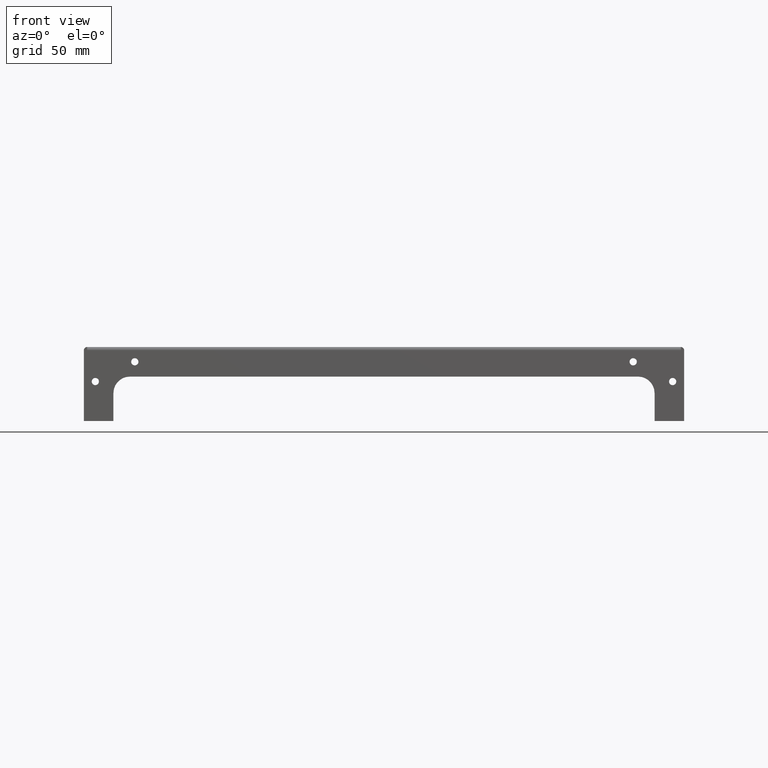
[diagram: clean part render]
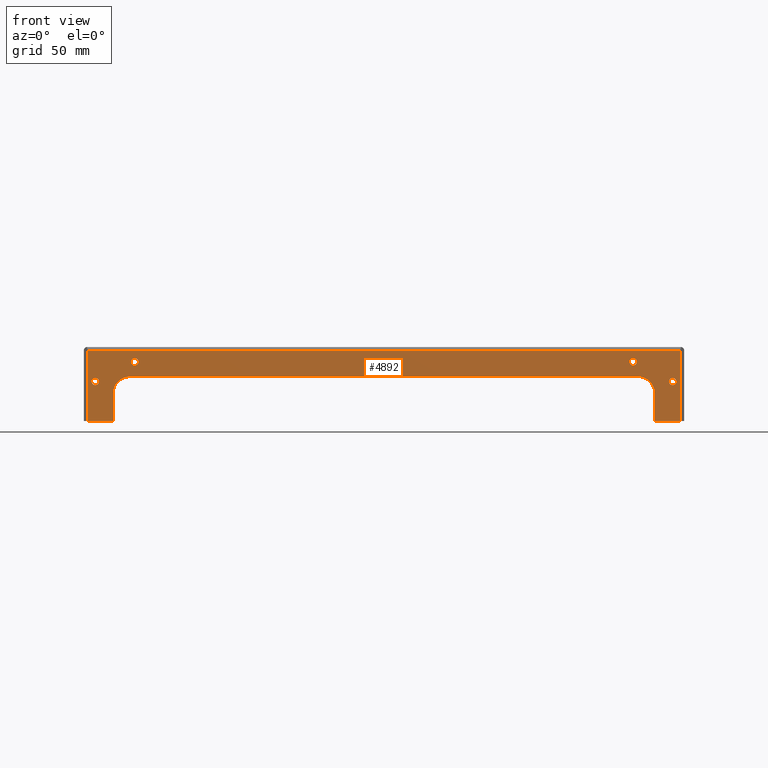
[diagram: same view with one face highlighted and labeled with its STEP entity id]
A machine part, front view. The second image highlights one B-rep face of the part: STEP entity #4892.
In plain terms, the highlighted planar face has unit normal (0, -1, 0).
Its self-contained STEP definition (entity closure, byte-faithful):
#1242 = VERTEX_POINT('',#1243);
#1243 = CARTESIAN_POINT('',(362.968,0.,0.));
#1259 = PLANE('',#1260);
#1260 = AXIS2_PLACEMENT_3D('',#1261,#1262,#1263);
#1261 = CARTESIAN_POINT('',(0.,0.,0.));
#1262 = DIRECTION('',(0.,1.,0.));
#1263 = DIRECTION('',(1.,0.,0.));
#1335 = PLANE('',#1336);
#1336 = AXIS2_PLACEMENT_3D('',#1337,#1338,#1339);
#1337 = CARTESIAN_POINT('',(362.968,0.,0.));
#1338 = DIRECTION('',(1.,0.,0.));
#1339 = DIRECTION('',(0.,1.,0.));
#1488 = VERTEX_POINT('',#1489);
#1489 = CARTESIAN_POINT('',(2.032,0.,0.));
#1549 = PLANE('',#1550);
#1550 = AXIS2_PLACEMENT_3D('',#1551,#1552,#1553);
#1551 = CARTESIAN_POINT('',(2.032,2.032,0.));
#1552 = DIRECTION('',(-1.,-0.,-0.));
#1553 = DIRECTION('',(0.,-1.,0.));
#2798 = EDGE_CURVE('',#1488,#1242,#2799,.T.);
#2799 = SURFACE_CURVE('',#2800,(#2804,#2811),.PCURVE_S1.);
#2800 = LINE('',#2801,#2802);
#2801 = CARTESIAN_POINT('',(2.032,0.,0.));
#2802 = VECTOR('',#2803,1.);
#2803 = DIRECTION('',(1.,0.,0.));
#2804 = PCURVE('',#1259,#2805);
#2805 = DEFINITIONAL_REPRESENTATION('',(#2806),#2810);
#2806 = LINE('',#2807,#2808);
#2807 = CARTESIAN_POINT('',(2.032,0.));
#2808 = VECTOR('',#2809,1.);
#2809 = DIRECTION('',(1.,0.));
#2810 = ( GEOMETRIC_REPRESENTATION_CONTEXT(2) 
PARAMETRIC_REPRESENTATION_CONTEXT() REPRESENTATION_CONTEXT('2D SPACE',''
  ) );
#2811 = PCURVE('',#2812,#2817);
#2812 = PLANE('',#2813);
#2813 = AXIS2_PLACEMENT_3D('',#2814,#2815,#2816);
#2814 = CARTESIAN_POINT('',(2.032,0.,0.));
#2815 = DIRECTION('',(0.,-1.,0.));
#2816 = DIRECTION('',(1.,0.,0.));
#2817 = DEFINITIONAL_REPRESENTATION('',(#2818),#2822);
#2818 = LINE('',#2819,#2820);
#2819 = CARTESIAN_POINT('',(0.,0.));
#2820 = VECTOR('',#2821,1.);
#2821 = DIRECTION('',(1.,0.));
#2822 = ( GEOMETRIC_REPRESENTATION_CONTEXT(2) 
PARAMETRIC_REPRESENTATION_CONTEXT() REPRESENTATION_CONTEXT('2D SPACE',''
  ) );
#2827 = EDGE_CURVE('',#1242,#2828,#2830,.T.);
#2828 = VERTEX_POINT('',#2829);
#2829 = CARTESIAN_POINT('',(362.968,0.,-42.968));
#2830 = SURFACE_CURVE('',#2831,(#2835,#2842),.PCURVE_S1.);
#2831 = LINE('',#2832,#2833);
#2832 = CARTESIAN_POINT('',(362.968,0.,0.));
#2833 = VECTOR('',#2834,1.);
#2834 = DIRECTION('',(0.,0.,-1.));
#2835 = PCURVE('',#1335,#2836);
#2836 = DEFINITIONAL_REPRESENTATION('',(#2837),#2841);
#2837 = LINE('',#2838,#2839);
#2838 = CARTESIAN_POINT('',(0.,0.));
#2839 = VECTOR('',#2840,1.);
#2840 = DIRECTION('',(0.,-1.));
#2841 = ( GEOMETRIC_REPRESENTATION_CONTEXT(2) 
PARAMETRIC_REPRESENTATION_CONTEXT() REPRESENTATION_CONTEXT('2D SPACE',''
  ) );
#2842 = PCURVE('',#2812,#2843);
#2843 = DEFINITIONAL_REPRESENTATION('',(#2844),#2848);
#2844 = LINE('',#2845,#2846);
#2845 = CARTESIAN_POINT('',(360.936,0.));
#2846 = VECTOR('',#2847,1.);
#2847 = DIRECTION('',(0.,-1.));
#2848 = ( GEOMETRIC_REPRESENTATION_CONTEXT(2) 
PARAMETRIC_REPRESENTATION_CONTEXT() REPRESENTATION_CONTEXT('2D SPACE',''
  ) );
#2866 = PLANE('',#2867);
#2867 = AXIS2_PLACEMENT_3D('',#2868,#2869,#2870);
#2868 = CARTESIAN_POINT('',(2.032,0.,-42.968));
#2869 = DIRECTION('',(0.,0.,-1.));
#2870 = DIRECTION('',(-1.,0.,0.));
#3013 = VERTEX_POINT('',#3014);
#3014 = CARTESIAN_POINT('',(2.032,0.,-42.968));
#3028 = PLANE('',#3029);
#3029 = AXIS2_PLACEMENT_3D('',#3030,#3031,#3032);
#3030 = CARTESIAN_POINT('',(2.032,0.,-42.968));
#3031 = DIRECTION('',(0.,0.,-1.));
#3032 = DIRECTION('',(-1.,0.,0.));
#3040 = EDGE_CURVE('',#1488,#3013,#3041,.T.);
#3041 = SURFACE_CURVE('',#3042,(#3046,#3053),.PCURVE_S1.);
#3042 = LINE('',#3043,#3044);
#3043 = CARTESIAN_POINT('',(2.032,0.,0.));
#3044 = VECTOR('',#3045,1.);
#3045 = DIRECTION('',(0.,0.,-1.));
#3046 = PCURVE('',#1549,#3047);
#3047 = DEFINITIONAL_REPRESENTATION('',(#3048),#3052);
#3048 = LINE('',#3049,#3050);
#3049 = CARTESIAN_POINT('',(2.032,0.));
#3050 = VECTOR('',#3051,1.);
#3051 = DIRECTION('',(0.,-1.));
#3052 = ( GEOMETRIC_REPRESENTATION_CONTEXT(2) 
PARAMETRIC_REPRESENTATION_CONTEXT() REPRESENTATION_CONTEXT('2D SPACE',''
  ) );
#3053 = PCURVE('',#2812,#3054);
#3054 = DEFINITIONAL_REPRESENTATION('',(#3055),#3059);
#3055 = LINE('',#3056,#3057);
#3056 = CARTESIAN_POINT('',(0.,0.));
#3057 = VECTOR('',#3058,1.);
#3058 = DIRECTION('',(0.,-1.));
#3059 = ( GEOMETRIC_REPRESENTATION_CONTEXT(2) 
PARAMETRIC_REPRESENTATION_CONTEXT() REPRESENTATION_CONTEXT('2D SPACE',''
  ) );
#3672 = PLANE('',#3673);
#3673 = AXIS2_PLACEMENT_3D('',#3674,#3675,#3676);
#3674 = CARTESIAN_POINT('',(347.,250.,-25.968));
#3675 = DIRECTION('',(1.,0.,0.));
#3676 = DIRECTION('',(0.,-2.2E-16,-1.));
#3700 = CYLINDRICAL_SURFACE('',#3701,10.);
#3701 = AXIS2_PLACEMENT_3D('',#3702,#3703,#3704);
#3702 = CARTESIAN_POINT('',(337.,250.,-25.968));
#3703 = DIRECTION('',(0.,1.,-2.2E-16));
#3704 = DIRECTION('',(-1.,0.,0.));
#3727 = PLANE('',#3728);
#3728 = AXIS2_PLACEMENT_3D('',#3729,#3730,#3731);
#3729 = CARTESIAN_POINT('',(28.,250.,-15.968));
#3730 = DIRECTION('',(0.,2.2E-16,1.));
#3731 = DIRECTION('',(1.,0.,0.));
#3755 = CYLINDRICAL_SURFACE('',#3756,10.);
#3756 = AXIS2_PLACEMENT_3D('',#3757,#3758,#3759);
#3757 = CARTESIAN_POINT('',(28.,250.,-25.968));
#3758 = DIRECTION('',(0.,1.,-2.2E-16));
#3759 = DIRECTION('',(-1.,0.,0.));
#3782 = PLANE('',#3783);
#3783 = AXIS2_PLACEMENT_3D('',#3784,#3785,#3786);
#3784 = CARTESIAN_POINT('',(18.,250.,-50.));
#3785 = DIRECTION('',(-1.,0.,0.));
#3786 = DIRECTION('',(0.,2.2E-16,1.));
#3834 = CYLINDRICAL_SURFACE('',#3835,2.195);
#3835 = AXIS2_PLACEMENT_3D('',#3836,#3837,#3838);
#3836 = CARTESIAN_POINT('',(334.,250.,-6.968));
#3837 = DIRECTION('',(0.,1.,-2.2E-16));
#3838 = DIRECTION('',(-1.,0.,0.));
#3865 = CYLINDRICAL_SURFACE('',#3866,2.195);
#3866 = AXIS2_PLACEMENT_3D('',#3867,#3868,#3869);
#3867 = CARTESIAN_POINT('',(358.,250.,-18.968));
#3868 = DIRECTION('',(0.,1.,-2.2E-16));
#3869 = DIRECTION('',(-1.,0.,0.));
#3896 = CYLINDRICAL_SURFACE('',#3897,2.195);
#3897 = AXIS2_PLACEMENT_3D('',#3898,#3899,#3900);
#3898 = CARTESIAN_POINT('',(7.,250.,-18.968));
#3899 = DIRECTION('',(0.,1.,-2.2E-16));
#3900 = DIRECTION('',(-1.,0.,0.));
#3927 = CYLINDRICAL_SURFACE('',#3928,2.195);
#3928 = AXIS2_PLACEMENT_3D('',#3929,#3930,#3931);
#3929 = CARTESIAN_POINT('',(31.,250.,-6.968));
#3930 = DIRECTION('',(0.,1.,-2.2E-16));
#3931 = DIRECTION('',(-1.,0.,0.));
#4892 = ADVANCED_FACE('',(#4893,#5061,#5091,#5121,#5151),#2812,.T.);
#4893 = FACE_BOUND('',#4894,.T.);
#4894 = EDGE_LOOP('',(#4895,#4896,#4897,#4920,#4941,#4969,#4990,#5018,
    #5039,#5060));
#4895 = ORIENTED_EDGE('',*,*,#2798,.F.);
#4896 = ORIENTED_EDGE('',*,*,#3040,.T.);
#4897 = ORIENTED_EDGE('',*,*,#4898,.T.);
#4898 = EDGE_CURVE('',#3013,#4899,#4901,.T.);
#4899 = VERTEX_POINT('',#4900);
#4900 = CARTESIAN_POINT('',(18.,0.,-42.968));
#4901 = SURFACE_CURVE('',#4902,(#4906,#4913),.PCURVE_S1.);
#4902 = LINE('',#4903,#4904);
#4903 = CARTESIAN_POINT('',(2.032,0.,-42.968));
#4904 = VECTOR('',#4905,1.);
#4905 = DIRECTION('',(1.,0.,0.));
#4906 = PCURVE('',#2812,#4907);
#4907 = DEFINITIONAL_REPRESENTATION('',(#4908),#4912);
#4908 = LINE('',#4909,#4910);
#4909 = CARTESIAN_POINT('',(0.,-42.968));
#4910 = VECTOR('',#4911,1.);
#4911 = DIRECTION('',(1.,0.));
#4912 = ( GEOMETRIC_REPRESENTATION_CONTEXT(2) 
PARAMETRIC_REPRESENTATION_CONTEXT() REPRESENTATION_CONTEXT('2D SPACE',''
  ) );
#4913 = PCURVE('',#3028,#4914);
#4914 = DEFINITIONAL_REPRESENTATION('',(#4915),#4919);
#4915 = LINE('',#4916,#4917);
#4916 = CARTESIAN_POINT('',(0.,0.));
#4917 = VECTOR('',#4918,1.);
#4918 = DIRECTION('',(-1.,0.));
#4919 = ( GEOMETRIC_REPRESENTATION_CONTEXT(2) 
PARAMETRIC_REPRESENTATION_CONTEXT() REPRESENTATION_CONTEXT('2D SPACE',''
  ) );
#4920 = ORIENTED_EDGE('',*,*,#4921,.F.);
#4921 = EDGE_CURVE('',#4922,#4899,#4924,.T.);
#4922 = VERTEX_POINT('',#4923);
#4923 = CARTESIAN_POINT('',(18.,0.,-25.968));
#4924 = SURFACE_CURVE('',#4925,(#4929,#4935),.PCURVE_S1.);
#4925 = LINE('',#4926,#4927);
#4926 = CARTESIAN_POINT('',(18.,0.,-25.));
#4927 = VECTOR('',#4928,1.);
#4928 = DIRECTION('',(-0.,-0.,-1.));
#4929 = PCURVE('',#2812,#4930);
#4930 = DEFINITIONAL_REPRESENTATION('',(#4931),#4934);
#4931 = B_SPLINE_CURVE_WITH_KNOTS('',1,(#4932,#4933),.UNSPECIFIED.,.F.,
  .F.,(2,2),(-1.4352,22.2648),.PIECEWISE_BEZIER_KNOTS.);
#4932 = CARTESIAN_POINT('',(15.968,-23.5648));
#4933 = CARTESIAN_POINT('',(15.968,-47.2648));
#4934 = ( GEOMETRIC_REPRESENTATION_CONTEXT(2) 
PARAMETRIC_REPRESENTATION_CONTEXT() REPRESENTATION_CONTEXT('2D SPACE',''
  ) );
#4935 = PCURVE('',#3782,#4936);
#4936 = DEFINITIONAL_REPRESENTATION('',(#4937),#4940);
#4937 = B_SPLINE_CURVE_WITH_KNOTS('',1,(#4938,#4939),.UNSPECIFIED.,.F.,
  .F.,(2,2),(-1.4352,22.2648),.PIECEWISE_BEZIER_KNOTS.);
#4938 = CARTESIAN_POINT('',(26.4352,-250.));
#4939 = CARTESIAN_POINT('',(2.7352,-250.));
#4940 = ( GEOMETRIC_REPRESENTATION_CONTEXT(2) 
PARAMETRIC_REPRESENTATION_CONTEXT() REPRESENTATION_CONTEXT('2D SPACE',''
  ) );
#4941 = ORIENTED_EDGE('',*,*,#4942,.T.);
#4942 = EDGE_CURVE('',#4922,#4943,#4945,.T.);
#4943 = VERTEX_POINT('',#4944);
#4944 = CARTESIAN_POINT('',(28.,0.,-15.968));
#4945 = SURFACE_CURVE('',#4946,(#4951,#4962),.PCURVE_S1.);
#4946 = CIRCLE('',#4947,10.);
#4947 = AXIS2_PLACEMENT_3D('',#4948,#4949,#4950);
#4948 = CARTESIAN_POINT('',(28.,0.,-25.968));
#4949 = DIRECTION('',(0.,1.,-2.2E-16));
#4950 = DIRECTION('',(-1.,0.,0.));
#4951 = PCURVE('',#2812,#4952);
#4952 = DEFINITIONAL_REPRESENTATION('',(#4953),#4961);
#4953 = ( BOUNDED_CURVE() B_SPLINE_CURVE(2,(#4954,#4955,#4956,#4957,
#4958,#4959,#4960),.UNSPECIFIED.,.F.,.F.) B_SPLINE_CURVE_WITH_KNOTS((1,2
    ,2,2,2,1),(-2.094395102393,0.,2.094395102393,4.188790204786,
6.28318530718,8.377580409573),.UNSPECIFIED.) CURVE() 
GEOMETRIC_REPRESENTATION_ITEM() RATIONAL_B_SPLINE_CURVE((1.,0.5,1.,0.5,
1.,0.5,1.)) REPRESENTATION_ITEM('') );
#4954 = CARTESIAN_POINT('',(15.968,-25.968));
#4955 = CARTESIAN_POINT('',(15.968,-8.647491924311));
#4956 = CARTESIAN_POINT('',(30.968,-17.30774596215));
#4957 = CARTESIAN_POINT('',(45.968,-25.968));
#4958 = CARTESIAN_POINT('',(30.968,-34.62825403784));
#4959 = CARTESIAN_POINT('',(15.968,-43.28850807568));
#4960 = CARTESIAN_POINT('',(15.968,-25.968));
#4961 = ( GEOMETRIC_REPRESENTATION_CONTEXT(2) 
PARAMETRIC_REPRESENTATION_CONTEXT() REPRESENTATION_CONTEXT('2D SPACE',''
  ) );
#4962 = PCURVE('',#3755,#4963);
#4963 = DEFINITIONAL_REPRESENTATION('',(#4964),#4968);
#4964 = LINE('',#4965,#4966);
#4965 = CARTESIAN_POINT('',(0.,-250.));
#4966 = VECTOR('',#4967,1.);
#4967 = DIRECTION('',(1.,0.));
#4968 = ( GEOMETRIC_REPRESENTATION_CONTEXT(2) 
PARAMETRIC_REPRESENTATION_CONTEXT() REPRESENTATION_CONTEXT('2D SPACE',''
  ) );
#4969 = ORIENTED_EDGE('',*,*,#4970,.F.);
#4970 = EDGE_CURVE('',#4971,#4943,#4973,.T.);
#4971 = VERTEX_POINT('',#4972);
#4972 = CARTESIAN_POINT('',(337.,0.,-15.968));
#4973 = SURFACE_CURVE('',#4974,(#4978,#4984),.PCURVE_S1.);
#4974 = LINE('',#4975,#4976);
#4975 = CARTESIAN_POINT('',(15.016,0.,-15.968));
#4976 = VECTOR('',#4977,1.);
#4977 = DIRECTION('',(-1.,0.,0.));
#4978 = PCURVE('',#2812,#4979);
#4979 = DEFINITIONAL_REPRESENTATION('',(#4980),#4983);
#4980 = B_SPLINE_CURVE_WITH_KNOTS('',1,(#4981,#4982),.UNSPECIFIED.,.F.,
  .F.,(2,2),(-352.884,17.916),.PIECEWISE_BEZIER_KNOTS.);
#4981 = CARTESIAN_POINT('',(365.868,-15.968));
#4982 = CARTESIAN_POINT('',(-4.932,-15.968));
#4983 = ( GEOMETRIC_REPRESENTATION_CONTEXT(2) 
PARAMETRIC_REPRESENTATION_CONTEXT() REPRESENTATION_CONTEXT('2D SPACE',''
  ) );
#4984 = PCURVE('',#3727,#4985);
#4985 = DEFINITIONAL_REPRESENTATION('',(#4986),#4989);
#4986 = B_SPLINE_CURVE_WITH_KNOTS('',1,(#4987,#4988),.UNSPECIFIED.,.F.,
  .F.,(2,2),(-352.884,17.916),.PIECEWISE_BEZIER_KNOTS.);
#4987 = CARTESIAN_POINT('',(339.9,-250.));
#4988 = CARTESIAN_POINT('',(-30.9,-250.));
#4989 = ( GEOMETRIC_REPRESENTATION_CONTEXT(2) 
PARAMETRIC_REPRESENTATION_CONTEXT() REPRESENTATION_CONTEXT('2D SPACE',''
  ) );
#4990 = ORIENTED_EDGE('',*,*,#4991,.T.);
#4991 = EDGE_CURVE('',#4971,#4992,#4994,.T.);
#4992 = VERTEX_POINT('',#4993);
#4993 = CARTESIAN_POINT('',(347.,0.,-25.968));
#4994 = SURFACE_CURVE('',#4995,(#5000,#5011),.PCURVE_S1.);
#4995 = CIRCLE('',#4996,10.);
#4996 = AXIS2_PLACEMENT_3D('',#4997,#4998,#4999);
#4997 = CARTESIAN_POINT('',(337.,0.,-25.968));
#4998 = DIRECTION('',(0.,1.,-2.2E-16));
#4999 = DIRECTION('',(-1.,0.,0.));
#5000 = PCURVE('',#2812,#5001);
#5001 = DEFINITIONAL_REPRESENTATION('',(#5002),#5010);
#5002 = ( BOUNDED_CURVE() B_SPLINE_CURVE(2,(#5003,#5004,#5005,#5006,
#5007,#5008,#5009),.UNSPECIFIED.,.F.,.F.) B_SPLINE_CURVE_WITH_KNOTS((1,2
    ,2,2,2,1),(-2.094395102393,0.,2.094395102393,4.188790204786,
6.28318530718,8.377580409573),.UNSPECIFIED.) CURVE() 
GEOMETRIC_REPRESENTATION_ITEM() RATIONAL_B_SPLINE_CURVE((1.,0.5,1.,0.5,
1.,0.5,1.)) REPRESENTATION_ITEM('') );
#5003 = CARTESIAN_POINT('',(324.968,-25.968));
#5004 = CARTESIAN_POINT('',(324.968,-8.647491924311));
#5005 = CARTESIAN_POINT('',(339.968,-17.30774596215));
#5006 = CARTESIAN_POINT('',(354.968,-25.968));
#5007 = CARTESIAN_POINT('',(339.968,-34.62825403784));
#5008 = CARTESIAN_POINT('',(324.968,-43.28850807568));
#5009 = CARTESIAN_POINT('',(324.968,-25.968));
#5010 = ( GEOMETRIC_REPRESENTATION_CONTEXT(2) 
PARAMETRIC_REPRESENTATION_CONTEXT() REPRESENTATION_CONTEXT('2D SPACE',''
  ) );
#5011 = PCURVE('',#3700,#5012);
#5012 = DEFINITIONAL_REPRESENTATION('',(#5013),#5017);
#5013 = LINE('',#5014,#5015);
#5014 = CARTESIAN_POINT('',(0.,-250.));
#5015 = VECTOR('',#5016,1.);
#5016 = DIRECTION('',(1.,0.));
#5017 = ( GEOMETRIC_REPRESENTATION_CONTEXT(2) 
PARAMETRIC_REPRESENTATION_CONTEXT() REPRESENTATION_CONTEXT('2D SPACE',''
  ) );
#5018 = ORIENTED_EDGE('',*,*,#5019,.F.);
#5019 = EDGE_CURVE('',#5020,#4992,#5022,.T.);
#5020 = VERTEX_POINT('',#5021);
#5021 = CARTESIAN_POINT('',(347.,0.,-42.968));
#5022 = SURFACE_CURVE('',#5023,(#5027,#5033),.PCURVE_S1.);
#5023 = LINE('',#5024,#5025);
#5024 = CARTESIAN_POINT('',(347.,0.,-12.984));
#5025 = VECTOR('',#5026,1.);
#5026 = DIRECTION('',(0.,0.,1.));
#5027 = PCURVE('',#2812,#5028);
#5028 = DEFINITIONAL_REPRESENTATION('',(#5029),#5032);
#5029 = B_SPLINE_CURVE_WITH_KNOTS('',1,(#5030,#5031),.UNSPECIFIED.,.F.,
  .F.,(2,2),(-34.2808,-10.5808),.PIECEWISE_BEZIER_KNOTS.);
#5030 = CARTESIAN_POINT('',(344.968,-47.2648));
#5031 = CARTESIAN_POINT('',(344.968,-23.5648));
#5032 = ( GEOMETRIC_REPRESENTATION_CONTEXT(2) 
PARAMETRIC_REPRESENTATION_CONTEXT() REPRESENTATION_CONTEXT('2D SPACE',''
  ) );
#5033 = PCURVE('',#3672,#5034);
#5034 = DEFINITIONAL_REPRESENTATION('',(#5035),#5038);
#5035 = B_SPLINE_CURVE_WITH_KNOTS('',1,(#5036,#5037),.UNSPECIFIED.,.F.,
  .F.,(2,2),(-34.2808,-10.5808),.PIECEWISE_BEZIER_KNOTS.);
#5036 = CARTESIAN_POINT('',(21.2968,-250.));
#5037 = CARTESIAN_POINT('',(-2.4032,-250.));
#5038 = ( GEOMETRIC_REPRESENTATION_CONTEXT(2) 
PARAMETRIC_REPRESENTATION_CONTEXT() REPRESENTATION_CONTEXT('2D SPACE',''
  ) );
#5039 = ORIENTED_EDGE('',*,*,#5040,.T.);
#5040 = EDGE_CURVE('',#5020,#2828,#5041,.T.);
#5041 = SURFACE_CURVE('',#5042,(#5046,#5053),.PCURVE_S1.);
#5042 = LINE('',#5043,#5044);
#5043 = CARTESIAN_POINT('',(2.032,0.,-42.968));
#5044 = VECTOR('',#5045,1.);
#5045 = DIRECTION('',(1.,0.,0.));
#5046 = PCURVE('',#2812,#5047);
#5047 = DEFINITIONAL_REPRESENTATION('',(#5048),#5052);
#5048 = LINE('',#5049,#5050);
#5049 = CARTESIAN_POINT('',(0.,-42.968));
#5050 = VECTOR('',#5051,1.);
#5051 = DIRECTION('',(1.,0.));
#5052 = ( GEOMETRIC_REPRESENTATION_CONTEXT(2) 
PARAMETRIC_REPRESENTATION_CONTEXT() REPRESENTATION_CONTEXT('2D SPACE',''
  ) );
#5053 = PCURVE('',#2866,#5054);
#5054 = DEFINITIONAL_REPRESENTATION('',(#5055),#5059);
#5055 = LINE('',#5056,#5057);
#5056 = CARTESIAN_POINT('',(0.,0.));
#5057 = VECTOR('',#5058,1.);
#5058 = DIRECTION('',(-1.,0.));
#5059 = ( GEOMETRIC_REPRESENTATION_CONTEXT(2) 
PARAMETRIC_REPRESENTATION_CONTEXT() REPRESENTATION_CONTEXT('2D SPACE',''
  ) );
#5060 = ORIENTED_EDGE('',*,*,#2827,.F.);
#5061 = FACE_BOUND('',#5062,.T.);
#5062 = EDGE_LOOP('',(#5063));
#5063 = ORIENTED_EDGE('',*,*,#5064,.T.);
#5064 = EDGE_CURVE('',#5065,#5065,#5067,.T.);
#5065 = VERTEX_POINT('',#5066);
#5066 = CARTESIAN_POINT('',(331.805,0.,-6.968));
#5067 = SURFACE_CURVE('',#5068,(#5073,#5084),.PCURVE_S1.);
#5068 = CIRCLE('',#5069,2.195);
#5069 = AXIS2_PLACEMENT_3D('',#5070,#5071,#5072);
#5070 = CARTESIAN_POINT('',(334.,0.,-6.968));
#5071 = DIRECTION('',(0.,1.,-2.2E-16));
#5072 = DIRECTION('',(-1.,0.,0.));
#5073 = PCURVE('',#2812,#5074);
#5074 = DEFINITIONAL_REPRESENTATION('',(#5075),#5083);
#5075 = ( BOUNDED_CURVE() B_SPLINE_CURVE(2,(#5076,#5077,#5078,#5079,
#5080,#5081,#5082),.UNSPECIFIED.,.T.,.F.) B_SPLINE_CURVE_WITH_KNOTS((1,2
    ,2,2,2,1),(-2.094395102393,0.,2.094395102393,4.188790204786,
6.28318530718,8.377580409573),.UNSPECIFIED.) CURVE() 
GEOMETRIC_REPRESENTATION_ITEM() RATIONAL_B_SPLINE_CURVE((1.,0.5,1.,0.5,
1.,0.5,1.)) REPRESENTATION_ITEM('') );
#5076 = CARTESIAN_POINT('',(329.773,-6.968));
#5077 = CARTESIAN_POINT('',(329.773,-3.166148477386));
#5078 = CARTESIAN_POINT('',(333.0655,-5.067074238693));
#5079 = CARTESIAN_POINT('',(336.358,-6.968));
#5080 = CARTESIAN_POINT('',(333.0655,-8.868925761307));
#5081 = CARTESIAN_POINT('',(329.773,-10.76985152261));
#5082 = CARTESIAN_POINT('',(329.773,-6.968));
#5083 = ( GEOMETRIC_REPRESENTATION_CONTEXT(2) 
PARAMETRIC_REPRESENTATION_CONTEXT() REPRESENTATION_CONTEXT('2D SPACE',''
  ) );
#5084 = PCURVE('',#3834,#5085);
#5085 = DEFINITIONAL_REPRESENTATION('',(#5086),#5090);
#5086 = LINE('',#5087,#5088);
#5087 = CARTESIAN_POINT('',(0.,-250.));
#5088 = VECTOR('',#5089,1.);
#5089 = DIRECTION('',(1.,0.));
#5090 = ( GEOMETRIC_REPRESENTATION_CONTEXT(2) 
PARAMETRIC_REPRESENTATION_CONTEXT() REPRESENTATION_CONTEXT('2D SPACE',''
  ) );
#5091 = FACE_BOUND('',#5092,.T.);
#5092 = EDGE_LOOP('',(#5093));
#5093 = ORIENTED_EDGE('',*,*,#5094,.T.);
#5094 = EDGE_CURVE('',#5095,#5095,#5097,.T.);
#5095 = VERTEX_POINT('',#5096);
#5096 = CARTESIAN_POINT('',(355.805,0.,-18.968));
#5097 = SURFACE_CURVE('',#5098,(#5103,#5114),.PCURVE_S1.);
#5098 = CIRCLE('',#5099,2.195);
#5099 = AXIS2_PLACEMENT_3D('',#5100,#5101,#5102);
#5100 = CARTESIAN_POINT('',(358.,0.,-18.968));
#5101 = DIRECTION('',(0.,1.,-2.2E-16));
#5102 = DIRECTION('',(-1.,0.,0.));
#5103 = PCURVE('',#2812,#5104);
#5104 = DEFINITIONAL_REPRESENTATION('',(#5105),#5113);
#5105 = ( BOUNDED_CURVE() B_SPLINE_CURVE(2,(#5106,#5107,#5108,#5109,
#5110,#5111,#5112),.UNSPECIFIED.,.T.,.F.) B_SPLINE_CURVE_WITH_KNOTS((1,2
    ,2,2,2,1),(-2.094395102393,0.,2.094395102393,4.188790204786,
6.28318530718,8.377580409573),.UNSPECIFIED.) CURVE() 
GEOMETRIC_REPRESENTATION_ITEM() RATIONAL_B_SPLINE_CURVE((1.,0.5,1.,0.5,
1.,0.5,1.)) REPRESENTATION_ITEM('') );
#5106 = CARTESIAN_POINT('',(353.773,-18.968));
#5107 = CARTESIAN_POINT('',(353.773,-15.16614847738));
#5108 = CARTESIAN_POINT('',(357.0655,-17.06707423869));
#5109 = CARTESIAN_POINT('',(360.358,-18.968));
#5110 = CARTESIAN_POINT('',(357.0655,-20.8689257613));
#5111 = CARTESIAN_POINT('',(353.773,-22.76985152261));
#5112 = CARTESIAN_POINT('',(353.773,-18.968));
#5113 = ( GEOMETRIC_REPRESENTATION_CONTEXT(2) 
PARAMETRIC_REPRESENTATION_CONTEXT() REPRESENTATION_CONTEXT('2D SPACE',''
  ) );
#5114 = PCURVE('',#3865,#5115);
#5115 = DEFINITIONAL_REPRESENTATION('',(#5116),#5120);
#5116 = LINE('',#5117,#5118);
#5117 = CARTESIAN_POINT('',(0.,-250.));
#5118 = VECTOR('',#5119,1.);
#5119 = DIRECTION('',(1.,0.));
#5120 = ( GEOMETRIC_REPRESENTATION_CONTEXT(2) 
PARAMETRIC_REPRESENTATION_CONTEXT() REPRESENTATION_CONTEXT('2D SPACE',''
  ) );
#5121 = FACE_BOUND('',#5122,.T.);
#5122 = EDGE_LOOP('',(#5123));
#5123 = ORIENTED_EDGE('',*,*,#5124,.T.);
#5124 = EDGE_CURVE('',#5125,#5125,#5127,.T.);
#5125 = VERTEX_POINT('',#5126);
#5126 = CARTESIAN_POINT('',(4.805,0.,-18.968));
#5127 = SURFACE_CURVE('',#5128,(#5133,#5144),.PCURVE_S1.);
#5128 = CIRCLE('',#5129,2.195);
#5129 = AXIS2_PLACEMENT_3D('',#5130,#5131,#5132);
#5130 = CARTESIAN_POINT('',(7.,0.,-18.968));
#5131 = DIRECTION('',(0.,1.,-2.2E-16));
#5132 = DIRECTION('',(-1.,0.,0.));
#5133 = PCURVE('',#2812,#5134);
#5134 = DEFINITIONAL_REPRESENTATION('',(#5135),#5143);
#5135 = ( BOUNDED_CURVE() B_SPLINE_CURVE(2,(#5136,#5137,#5138,#5139,
#5140,#5141,#5142),.UNSPECIFIED.,.F.,.F.) B_SPLINE_CURVE_WITH_KNOTS((1,2
    ,2,2,2,1),(-2.094395102393,0.,2.094395102393,4.188790204786,
6.28318530718,8.377580409573),.UNSPECIFIED.) CURVE() 
GEOMETRIC_REPRESENTATION_ITEM() RATIONAL_B_SPLINE_CURVE((1.,0.5,1.,0.5,
1.,0.5,1.)) REPRESENTATION_ITEM('') );
#5136 = CARTESIAN_POINT('',(2.773,-18.968));
#5137 = CARTESIAN_POINT('',(2.773,-15.16614847738));
#5138 = CARTESIAN_POINT('',(6.0655,-17.06707423869));
#5139 = CARTESIAN_POINT('',(9.358,-18.968));
#5140 = CARTESIAN_POINT('',(6.0655,-20.8689257613));
#5141 = CARTESIAN_POINT('',(2.773,-22.76985152261));
#5142 = CARTESIAN_POINT('',(2.773,-18.968));
#5143 = ( GEOMETRIC_REPRESENTATION_CONTEXT(2) 
PARAMETRIC_REPRESENTATION_CONTEXT() REPRESENTATION_CONTEXT('2D SPACE',''
  ) );
#5144 = PCURVE('',#3896,#5145);
#5145 = DEFINITIONAL_REPRESENTATION('',(#5146),#5150);
#5146 = LINE('',#5147,#5148);
#5147 = CARTESIAN_POINT('',(0.,-250.));
#5148 = VECTOR('',#5149,1.);
#5149 = DIRECTION('',(1.,0.));
#5150 = ( GEOMETRIC_REPRESENTATION_CONTEXT(2) 
PARAMETRIC_REPRESENTATION_CONTEXT() REPRESENTATION_CONTEXT('2D SPACE',''
  ) );
#5151 = FACE_BOUND('',#5152,.T.);
#5152 = EDGE_LOOP('',(#5153));
#5153 = ORIENTED_EDGE('',*,*,#5154,.T.);
#5154 = EDGE_CURVE('',#5155,#5155,#5157,.T.);
#5155 = VERTEX_POINT('',#5156);
#5156 = CARTESIAN_POINT('',(28.805,0.,-6.968));
#5157 = SURFACE_CURVE('',#5158,(#5163,#5174),.PCURVE_S1.);
#5158 = CIRCLE('',#5159,2.195);
#5159 = AXIS2_PLACEMENT_3D('',#5160,#5161,#5162);
#5160 = CARTESIAN_POINT('',(31.,0.,-6.968));
#5161 = DIRECTION('',(0.,1.,-2.2E-16));
#5162 = DIRECTION('',(-1.,0.,0.));
#5163 = PCURVE('',#2812,#5164);
#5164 = DEFINITIONAL_REPRESENTATION('',(#5165),#5173);
#5165 = ( BOUNDED_CURVE() B_SPLINE_CURVE(2,(#5166,#5167,#5168,#5169,
#5170,#5171,#5172),.UNSPECIFIED.,.F.,.F.) B_SPLINE_CURVE_WITH_KNOTS((1,2
    ,2,2,2,1),(-2.094395102393,0.,2.094395102393,4.188790204786,
6.28318530718,8.377580409573),.UNSPECIFIED.) CURVE() 
GEOMETRIC_REPRESENTATION_ITEM() RATIONAL_B_SPLINE_CURVE((1.,0.5,1.,0.5,
1.,0.5,1.)) REPRESENTATION_ITEM('') );
#5166 = CARTESIAN_POINT('',(26.773,-6.968));
#5167 = CARTESIAN_POINT('',(26.773,-3.166148477386));
#5168 = CARTESIAN_POINT('',(30.0655,-5.067074238693));
#5169 = CARTESIAN_POINT('',(33.358,-6.968));
#5170 = CARTESIAN_POINT('',(30.0655,-8.868925761307));
#5171 = CARTESIAN_POINT('',(26.773,-10.76985152261));
#5172 = CARTESIAN_POINT('',(26.773,-6.968));
#5173 = ( GEOMETRIC_REPRESENTATION_CONTEXT(2) 
PARAMETRIC_REPRESENTATION_CONTEXT() REPRESENTATION_CONTEXT('2D SPACE',''
  ) );
#5174 = PCURVE('',#3927,#5175);
#5175 = DEFINITIONAL_REPRESENTATION('',(#5176),#5180);
#5176 = LINE('',#5177,#5178);
#5177 = CARTESIAN_POINT('',(0.,-250.));
#5178 = VECTOR('',#5179,1.);
#5179 = DIRECTION('',(1.,0.));
#5180 = ( GEOMETRIC_REPRESENTATION_CONTEXT(2) 
PARAMETRIC_REPRESENTATION_CONTEXT() REPRESENTATION_CONTEXT('2D SPACE',''
  ) );